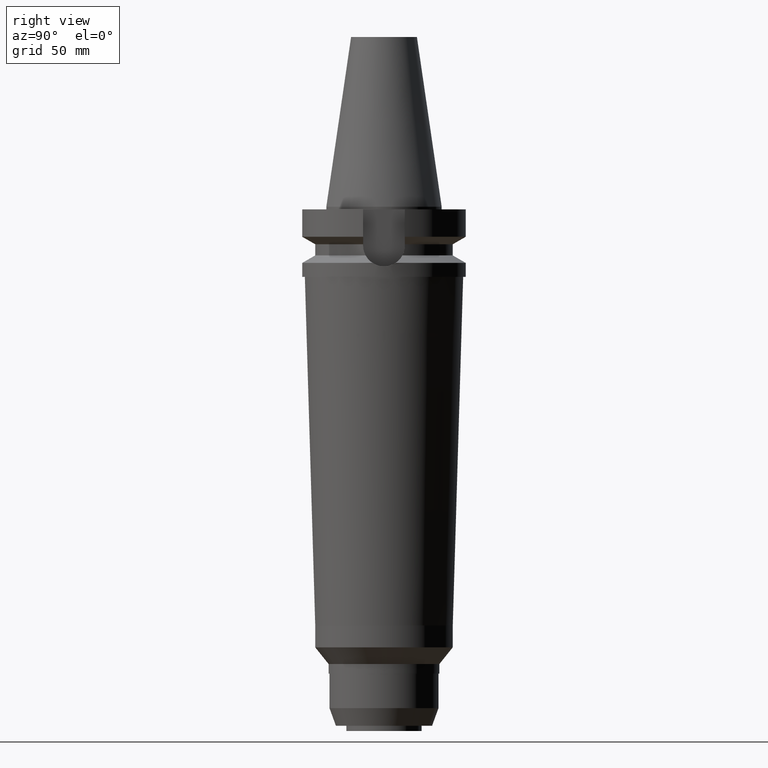
[diagram: clean part render]
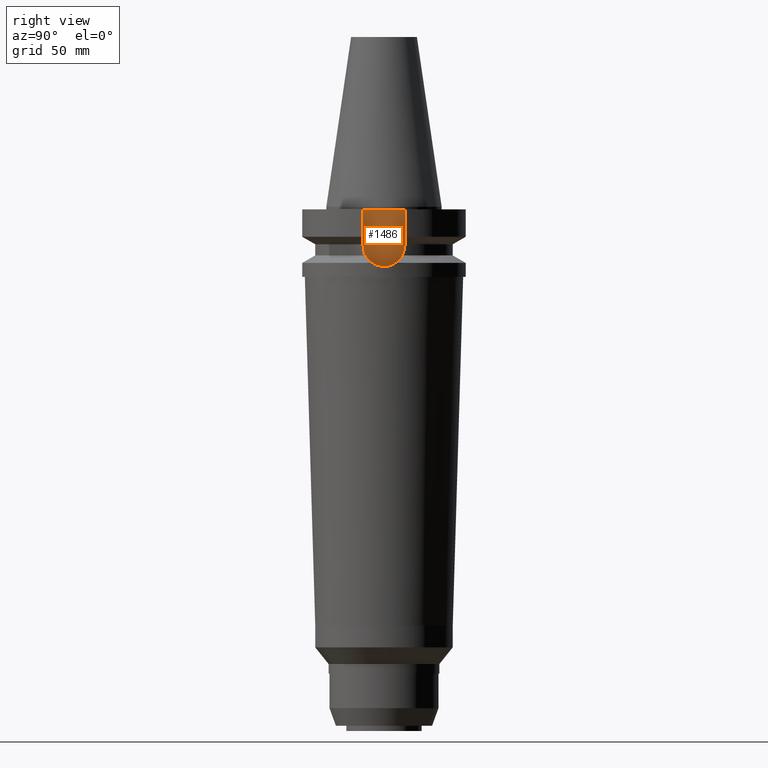
[diagram: same view with one face highlighted and labeled with its STEP entity id]
A machine part, right view. The second image highlights one B-rep face of the part: STEP entity #1486.
In plain terms, the highlighted planar face has unit normal (1, 0, 0).
Its self-contained STEP definition (entity closure, byte-faithful):
#124=DIRECTION('',(0.E0,-1.E0,0.E0));
#125=VECTOR('',#124,1.61E1);
#126=CARTESIAN_POINT('',(2.25E1,8.05E0,-1.E0));
#127=LINE('',#126,#125);
#307=DIRECTION('',(0.E0,0.E0,-1.E0));
#308=VECTOR('',#307,1.395E1);
#309=CARTESIAN_POINT('',(2.25E1,8.05E0,-1.E0));
#310=LINE('',#309,#308);
#314=CARTESIAN_POINT('',(2.25E1,0.E0,-1.495E1));
#315=DIRECTION('',(-1.E0,0.E0,0.E0));
#316=DIRECTION('',(0.E0,1.E0,0.E0));
#317=AXIS2_PLACEMENT_3D('',#314,#315,#316);
#322=CARTESIAN_POINT('',(2.25E1,0.E0,-1.495E1));
#323=DIRECTION('',(-1.E0,0.E0,0.E0));
#324=DIRECTION('',(0.E0,0.E0,-1.E0));
#325=AXIS2_PLACEMENT_3D('',#322,#323,#324);
#330=DIRECTION('',(0.E0,0.E0,1.E0));
#331=VECTOR('',#330,1.395E1);
#332=CARTESIAN_POINT('',(2.25E1,-8.05E0,-1.495E1));
#333=LINE('',#332,#331);
#1114=CARTESIAN_POINT('',(2.25E1,8.05E0,-1.E0));
#1115=VERTEX_POINT('',#1114);
#1116=CARTESIAN_POINT('',(2.25E1,-8.05E0,-1.E0));
#1117=VERTEX_POINT('',#1116);
#1169=CARTESIAN_POINT('',(2.25E1,-8.05E0,-1.495E1));
#1170=VERTEX_POINT('',#1169);
#1171=CARTESIAN_POINT('',(2.25E1,8.05E0,-1.495E1));
#1172=VERTEX_POINT('',#1171);
#1173=CARTESIAN_POINT('',(2.25E1,0.E0,-2.3E1));
#1174=VERTEX_POINT('',#1173);
#1471=CARTESIAN_POINT('',(2.25E1,0.E0,0.E0));
#1472=DIRECTION('',(1.E0,0.E0,0.E0));
#1473=DIRECTION('',(0.E0,0.E0,-1.E0));
#1474=AXIS2_PLACEMENT_3D('',#1471,#1472,#1473);
#1475=PLANE('',#1474);
#1476=ORIENTED_EDGE('',*,*,#1348,.F.);
#1478=ORIENTED_EDGE('',*,*,#1477,.T.);
#1480=ORIENTED_EDGE('',*,*,#1479,.T.);
#1482=ORIENTED_EDGE('',*,*,#1481,.T.);
#1483=ORIENTED_EDGE('',*,*,#1461,.T.);
#1484=EDGE_LOOP('',(#1476,#1478,#1480,#1482,#1483));
#1485=FACE_OUTER_BOUND('',#1484,.F.);
#318=CIRCLE('',#317,8.05E0);
#326=CIRCLE('',#325,8.05E0);
#1348=EDGE_CURVE('',#1115,#1117,#127,.T.);
#1461=EDGE_CURVE('',#1170,#1117,#333,.T.);
#1477=EDGE_CURVE('',#1115,#1172,#310,.T.);
#1479=EDGE_CURVE('',#1172,#1174,#318,.T.);
#1481=EDGE_CURVE('',#1174,#1170,#326,.T.);
#1486=ADVANCED_FACE('',(#1485),#1475,.T.);